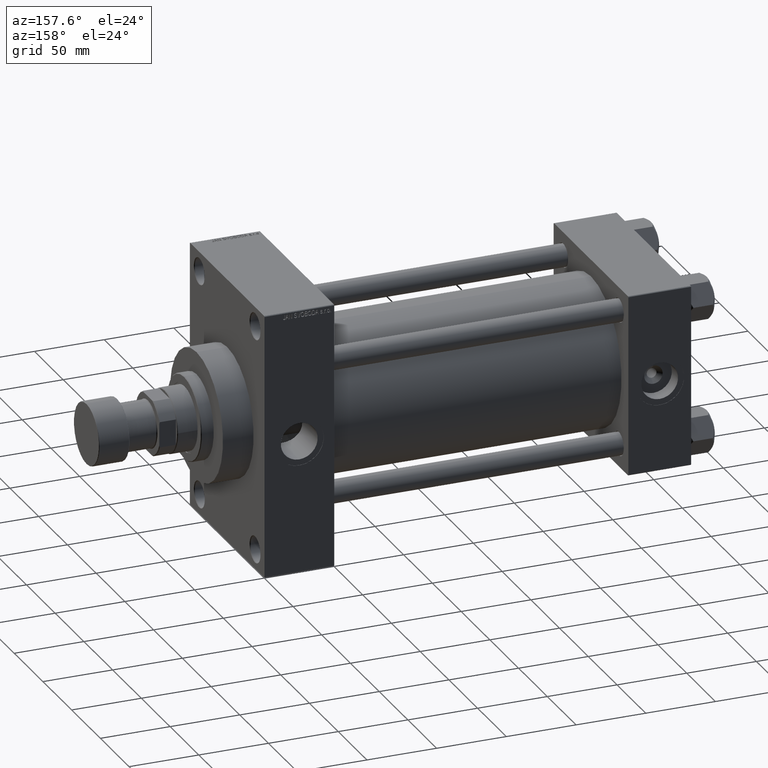
[diagram: clean part render]
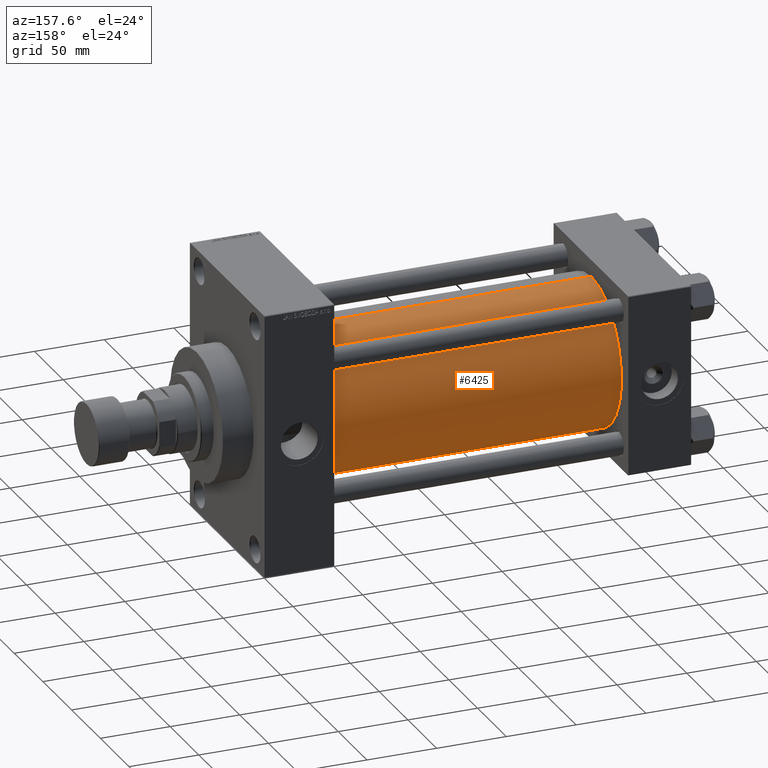
[diagram: same view with one face highlighted and labeled with its STEP entity id]
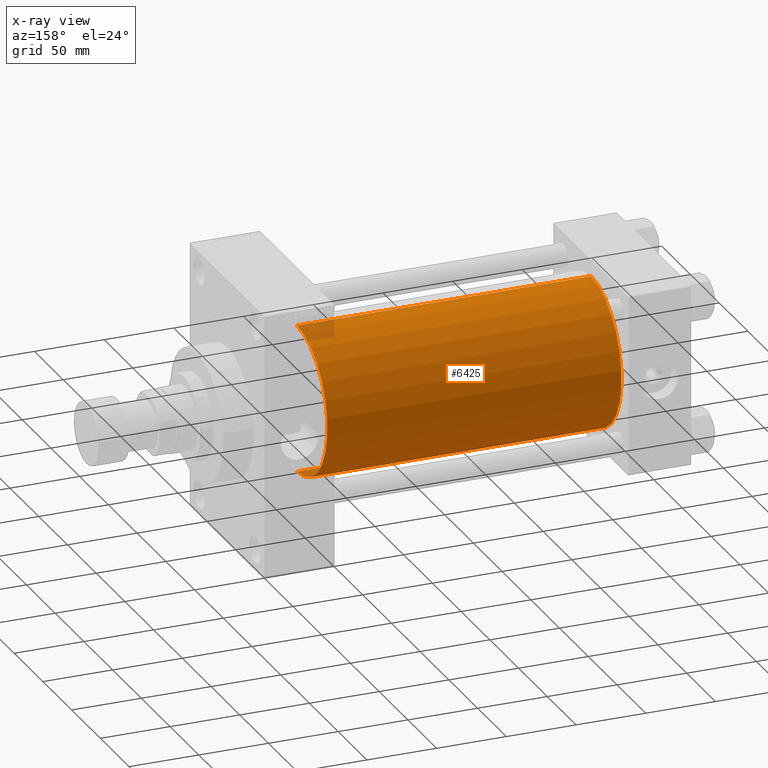
[diagram: x-ray of the same camera — body ghosted, the highlighted face saturated]
A machine part, auxiliary view. The second image highlights one B-rep face of the part: STEP entity #6425.
The next image is the same camera in x-ray: the body ghosted, the highlighted face saturated — about 2% of this face is hidden behind the body in this view.
In plain terms, the highlighted cylindrical surface (partial cylindrical patch) has radius 53 mm, axis along (-1, -0, -0).
Its self-contained STEP definition (entity closure, byte-faithful):
#525 = VERTEX_POINT ( 'NONE', #29770 ) ;
#796 = DIRECTION ( 'NONE',  ( -1.000000000000000000, -0.000000000000000000, -0.000000000000000000 ) ) ;
#1025 = LINE ( 'NONE', #8813, #11358 ) ;
#4436 = AXIS2_PLACEMENT_3D ( 'NONE', #40517, #14515, #21806 ) ;
#6186 = VERTEX_POINT ( 'NONE', #44371 ) ;
#6425 = ADVANCED_FACE ( 'NONE', ( #17688 ), #25209, .T. ) ;
#6447 = VERTEX_POINT ( 'NONE', #41250 ) ;
#6531 = ORIENTED_EDGE ( 'NONE', *, *, #44589, .F. ) ;
#8813 = CARTESIAN_POINT ( 'NONE',  ( 256.0000000000000000, 3.888542821515762466E-15, -53.00000000000000711 ) ) ;
#11358 = VECTOR ( 'NONE', #796, 1000.000000000000000 ) ;
#14515 = DIRECTION ( 'NONE',  ( -1.000000000000000000, -0.000000000000000000, -0.000000000000000000 ) ) ;
#14898 = AXIS2_PLACEMENT_3D ( 'NONE', #15550, #33115, #26965 ) ;
#15550 = CARTESIAN_POINT ( 'NONE',  ( 44.99999999999998579, -2.602085213965210642E-15, 0.000000000000000000 ) ) ;
#17284 = LINE ( 'NONE', #31615, #32407 ) ;
#17688 = FACE_OUTER_BOUND ( 'NONE', #28469, .T. ) ;
#20687 = EDGE_CURVE ( 'NONE', #6447, #46689, #26518, .T. ) ;
#21806 = DIRECTION ( 'NONE',  ( 0.000000000000000000, 0.000000000000000000, 1.000000000000000000 ) ) ;
#21825 = DIRECTION ( 'NONE',  ( -1.000000000000000000, -0.000000000000000000, -0.000000000000000000 ) ) ;
#21963 = DIRECTION ( 'NONE',  ( 0.000000000000000000, 0.000000000000000000, -1.000000000000000000 ) ) ;
#22447 = DIRECTION ( 'NONE',  ( 1.000000000000000000, 0.000000000000000000, 0.000000000000000000 ) ) ;
#24532 = CIRCLE ( 'NONE', #43139, 53.00000000000000711 ) ;
#25209 = CYLINDRICAL_SURFACE ( 'NONE', #4436, 53.00000000000000711 ) ;
#26091 = CARTESIAN_POINT ( 'NONE',  ( 256.0000000000000000, -2.602085213965210642E-15, 0.000000000000000000 ) ) ;
#26518 = CIRCLE ( 'NONE', #14898, 53.00000000000000711 ) ;
#26965 = DIRECTION ( 'NONE',  ( 0.000000000000000000, 0.000000000000000000, 1.000000000000000000 ) ) ;
#28159 = ORIENTED_EDGE ( 'NONE', *, *, #20687, .T. ) ;
#28469 = EDGE_LOOP ( 'NONE', ( #29486, #30667, #28159, #6531 ) ) ;
#28651 = CARTESIAN_POINT ( 'NONE',  ( 44.99999999999998579, -2.602085213965210642E-15, 53.00000000000000711 ) ) ;
#29486 = ORIENTED_EDGE ( 'NONE', *, *, #36829, .F. ) ;
#29770 = CARTESIAN_POINT ( 'NONE',  ( 256.0000000000000000, -2.602085213965210642E-15, 53.00000000000000711 ) ) ;
#30667 = ORIENTED_EDGE ( 'NONE', *, *, #38333, .T. ) ;
#31615 = CARTESIAN_POINT ( 'NONE',  ( 256.0000000000000000, -2.602085213965210642E-15, 53.00000000000000711 ) ) ;
#32407 = VECTOR ( 'NONE', #21825, 1000.000000000000000 ) ;
#33115 = DIRECTION ( 'NONE',  ( 1.000000000000000000, -0.000000000000000000, 0.000000000000000000 ) ) ;
#36829 = EDGE_CURVE ( 'NONE', #6186, #525, #24532, .T. ) ;
#38333 = EDGE_CURVE ( 'NONE', #6186, #6447, #1025, .T. ) ;
#40517 = CARTESIAN_POINT ( 'NONE',  ( 256.0000000000000000, -2.602085213965210642E-15, 0.000000000000000000 ) ) ;
#41250 = CARTESIAN_POINT ( 'NONE',  ( 44.99999999999998579, 3.888542821515762466E-15, -53.00000000000000711 ) ) ;
#43139 = AXIS2_PLACEMENT_3D ( 'NONE', #26091, #22447, #21963 ) ;
#44371 = CARTESIAN_POINT ( 'NONE',  ( 256.0000000000000000, 3.888542821515762466E-15, -53.00000000000000711 ) ) ;
#44589 = EDGE_CURVE ( 'NONE', #525, #46689, #17284, .T. ) ;
#46689 = VERTEX_POINT ( 'NONE', #28651 ) ;